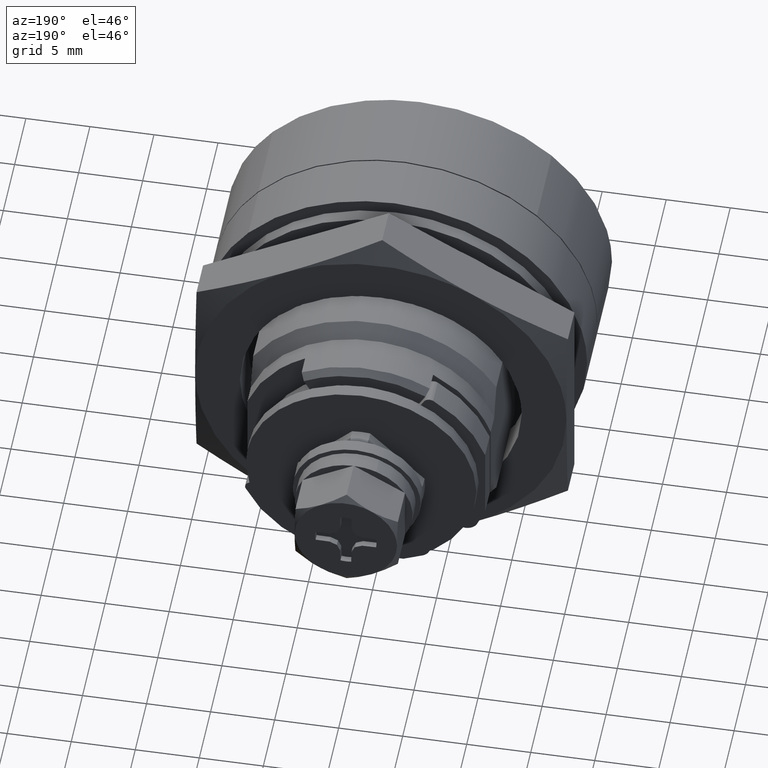
[diagram: clean part render]
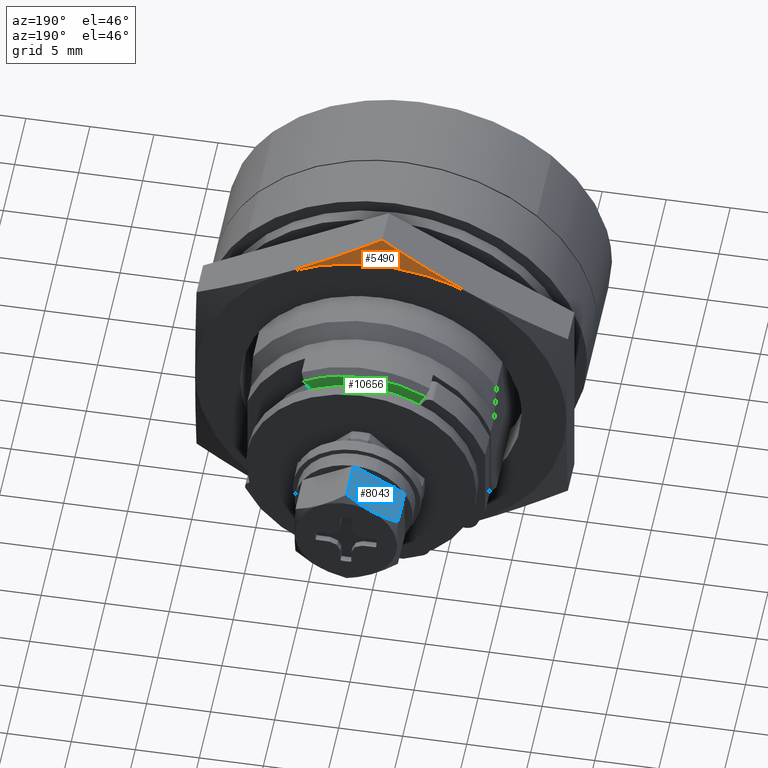
[diagram: same view with three faces highlighted in distinct colors, each labeled with its STEP entity id]
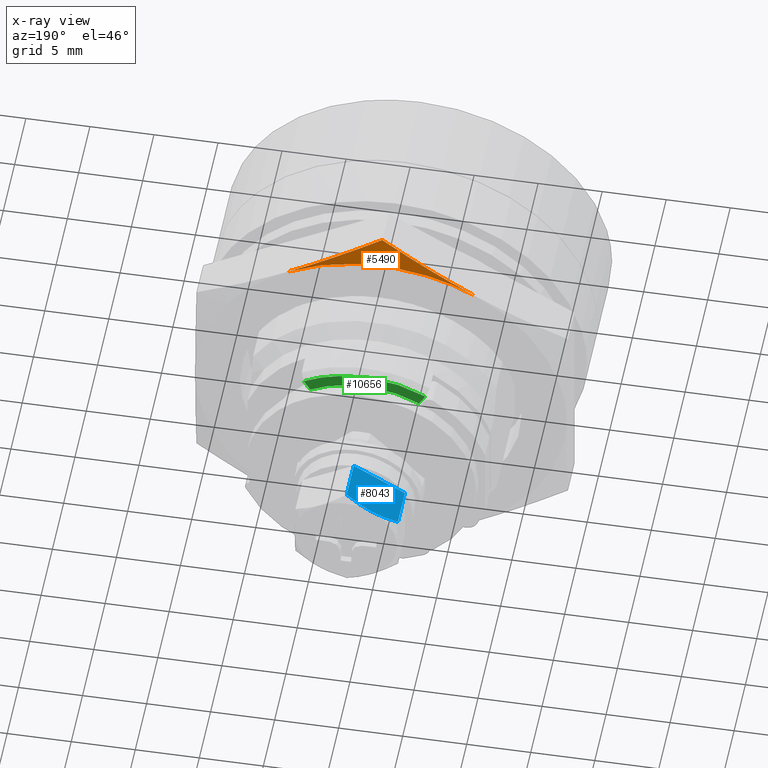
[diagram: x-ray of the same camera — body ghosted, the three highlighted faces saturated]
A machine part, auxiliary view with three faces highlighted in distinct colors.
The next image is the same camera in x-ray (body ghosted, the three faces saturated) — at least one of them is partly hidden behind the body in this view.
Their STEP definitions:

[orange] entity #5490 — the highlighted face is a freeform B-spline surface patch.
#5072=CARTESIAN_POINT('',(60.597371000000102,0.000000999999884,16.743157000000000));
#5073=VERTEX_POINT('',#5072);
#5079=CARTESIAN_POINT('',(61.198423000000012,7.249998893631220,12.557369927437140));
#5080=VERTEX_POINT('',#5079);
#5081=CARTESIAN_POINT('',(61.198423000000012,7.249998893631220,12.557369927437140));
#5082=CARTESIAN_POINT('',(61.198422783189059,6.645832809237941,12.906185281984470));
#5083=CARTESIAN_POINT('',(61.184864209157617,6.041666724496102,13.255000636733030));
#5084=CARTESIAN_POINT('',(61.131455811412970,4.833334013729823,13.952631658739710));
#5085=CARTESIAN_POINT('',(61.091621050792057,4.229167387705772,14.301447325997600));
#5086=CARTESIAN_POINT('',(60.936086251437111,2.416667508707375,15.347894328306070));
#5087=CARTESIAN_POINT('',(60.784300885235609,1.208334254805367,16.045525663892231));
#5088=CARTESIAN_POINT('',(60.597371000000102,0.000000999999884,16.743157000000000));
#5089=B_SPLINE_CURVE_WITH_KNOTS('',3,(#5081,#5082,#5083,#5084,#5085,#5086,#5087,#5088),.UNSPECIFIED.,.F.,.U.,(4,2,2,4),(0.500000111849674,0.625000000000000,0.750000000000000,1.0),.UNSPECIFIED.);
#5090=EDGE_CURVE('',#5080,#5073,#5089,.T.);
#5123=CARTESIAN_POINT('',(61.198423000000012,-7.249998759657210,12.557368427437019));
#5124=VERTEX_POINT('',#5123);
#5133=CARTESIAN_POINT('',(60.597371000000102,0.000000999999884,16.743157000000000));
#5134=CARTESIAN_POINT('',(60.784300968168097,-1.208332418881515,16.045525498721322));
#5135=CARTESIAN_POINT('',(60.936086413042801,-2.416665837346525,15.347893997683030));
#5136=CARTESIAN_POINT('',(61.091621309087039,-4.229165964189286,14.301446746619090));
#5137=CARTESIAN_POINT('',(61.131456098304362,-4.833332672994574,13.952630996346601));
#5138=CARTESIAN_POINT('',(61.184864556301740,-6.041665841139311,13.254999639830761));
#5139=CARTESIAN_POINT('',(61.198423149276202,-6.645832300478582,12.906184033587520));
#5140=CARTESIAN_POINT('',(61.198423000000012,-7.249998759657210,12.557368427437019));
#5141=B_SPLINE_CURVE_WITH_KNOTS('',3,(#5133,#5134,#5135,#5136,#5137,#5138,#5139,#5140),.UNSPECIFIED.,.F.,.U.,(4,2,2,4),(0.0,0.250000000000000,0.375000000000000,0.499999948450755),.UNSPECIFIED.);
#5142=EDGE_CURVE('',#5073,#5124,#5141,.T.);
#5329=CARTESIAN_POINT('',(61.198423000000012,-7.249998759657210,12.557368427437019));
#5330=CARTESIAN_POINT('',(61.198422999999949,-6.291235653011920,13.111171894486111));
#5331=CARTESIAN_POINT('',(61.198423000000012,-4.647776924721195,13.823223252447100));
#5332=CARTESIAN_POINT('',(61.198423000000027,-2.213464929864287,14.380269143137630));
#5333=CARTESIAN_POINT('',(61.198422999999707,0.118053985186283,14.571523492869630));
#5334=CARTESIAN_POINT('',(61.198423000000062,2.650722421189501,14.343061032792161));
#5335=CARTESIAN_POINT('',(61.198423000000332,5.132179018029286,13.634302511985300));
#5336=CARTESIAN_POINT('',(61.198422999999487,6.599365154438225,12.933058949989750));
#5337=CARTESIAN_POINT('',(61.198423000000012,7.249998893631220,12.557369927437140));
#5338=B_SPLINE_CURVE_WITH_KNOTS('',3,(#5329,#5330,#5331,#5332,#5333,#5334,#5335,#5336,#5337),.UNSPECIFIED.,.F.,.U.,(4,1,1,1,1,1,4),(0.000000032304436,3.321584693636115,5.338267214260013,7.473595542323515,10.320647186255609,12.930469232214350,15.184404068213309),.UNSPECIFIED.);
#5339=EDGE_CURVE('',#5124,#5080,#5338,.T.);
#5471=CARTESIAN_POINT('',(61.213449300000001,7.330842547216406,12.445304449733440));
#5472=CARTESIAN_POINT('',(60.581969042500099,8.526967034525883,14.475921436589900));
#5473=CARTESIAN_POINT('',(61.213449300000001,-0.295649828221637,16.937650540397385));
#5474=CARTESIAN_POINT('',(60.581969042500099,-0.343889030868135,19.701253555790583));
#5475=CARTESIAN_POINT('',(61.213449300000001,-7.760714588700297,12.181878523912790));
#5476=CARTESIAN_POINT('',(60.581969042500099,-9.026978418372794,14.169514066489580));
#5484=(BOUNDED_SURFACE()B_SPLINE_SURFACE(1,2,((#5471,#5473,#5475),(#5472,#5474,#5476)),.UNSPECIFIED.,.F.,.F.,.U.)B_SPLINE_SURFACE_WITH_KNOTS((2,2),(3,3),(0.0,2.439853776779163),(0.0,18.953080890439640),.UNSPECIFIED.)GEOMETRIC_REPRESENTATION_ITEM()RATIONAL_B_SPLINE_SURFACE(((1.0,0.852640164354093,1.0),(1.0,0.852640164354093,1.0)))REPRESENTATION_ITEM('')SURFACE());
#5485=ORIENTED_EDGE('',*,*,#5090,.T.);
#5486=ORIENTED_EDGE('',*,*,#5142,.T.);
#5487=ORIENTED_EDGE('',*,*,#5339,.T.);
#5488=EDGE_LOOP('',(#5485,#5486,#5487));
#5489=FACE_OUTER_BOUND('',#5488,.T.);
#5490=ADVANCED_FACE('',(#5489),#5484,.T.);

[blue] entity #8043 — the highlighted face is a freeform B-spline surface patch.
#6792=CARTESIAN_POINT('',(92.421359999999993,3.967583177997025,2.327720714706630));
#6793=VERTEX_POINT('',#6792);
#6996=CARTESIAN_POINT('',(92.421359999999993,0.033106732530280,4.599880861963760));
#6997=VERTEX_POINT('',#6996);
#7661=CARTESIAN_POINT('',(92.421359999999993,3.967583177997025,2.327720714706630));
#7662=CARTESIAN_POINT('',(92.421359999999993,0.033106732530280,4.599880861963760));
#7663=QUASI_UNIFORM_CURVE('',1,(#7661,#7662),.UNSPECIFIED.,.F.,.U.);
#7664=EDGE_CURVE('',#6793,#6997,#7663,.T.);
#7928=CARTESIAN_POINT('',(95.564210000184602,4.0,2.308999999999915));
#7929=VERTEX_POINT('',#7928);
#7965=CARTESIAN_POINT('',(92.421359999999993,4.0,2.308999999999915));
#7966=VERTEX_POINT('',#7965);
#7972=CARTESIAN_POINT('',(92.421359999999993,4.0,2.308999999999915));
#7973=CARTESIAN_POINT('',(95.564210000184602,4.0,2.308999999999915));
#7974=QUASI_UNIFORM_CURVE('',1,(#7972,#7973),.UNSPECIFIED.,.F.,.U.);
#7975=EDGE_CURVE('',#7966,#7929,#7974,.T.);
#7980=CARTESIAN_POINT('',(92.246531198484490,4.199799992247224,2.193615504477139));
#7981=CARTESIAN_POINT('',(92.246531198484490,-0.199800099535584,4.734384557481805));
#7982=CARTESIAN_POINT('',(96.096181072283159,4.199799992247224,2.193615504477139));
#7983=CARTESIAN_POINT('',(96.096181072283159,-0.199800099535584,4.734384557481805));
#7984=B_SPLINE_SURFACE_WITH_KNOTS('',1,1,((#7980,#7982),(#7981,#7983)),.UNSPECIFIED.,.F.,.F.,.U.,(2,2),(2,2),(0.0,5.080550004509504),(0.0,3.849649873798668),.UNSPECIFIED.);
#7985=CARTESIAN_POINT('',(95.563980000000001,0.0,4.619000000000000));
#7986=VERTEX_POINT('',#7985);
#7987=CARTESIAN_POINT('',(95.921359999999993,1.977365605221870,3.477071362984330));
#7988=VERTEX_POINT('',#7987);
#7989=CARTESIAN_POINT('',(95.563979999999972,8.869866E-015,4.618999999999996));
#7990=CARTESIAN_POINT('',(95.591178000583909,0.081572804682868,4.571891705295645));
#7991=CARTESIAN_POINT('',(95.617252941894435,0.163515301729083,4.524569913251453));
#7992=CARTESIAN_POINT('',(95.666875313126923,0.328232310373892,4.429445840759072));
#7993=CARTESIAN_POINT('',(95.690446019959225,0.411106207632420,4.381586165092269));
#7994=CARTESIAN_POINT('',(95.756566784901949,0.659787127841645,4.237972933671437));
#7995=CARTESIAN_POINT('',(95.794621342361253,0.825954722032223,4.142011148026375));
#7996=CARTESIAN_POINT('',(95.886454411074382,1.319008323411181,3.857272693230017));
#7997=CARTESIAN_POINT('',(95.919877753195607,1.647179000007474,3.667754127495651));
#7998=CARTESIAN_POINT('',(95.921359999999993,1.977365605221870,3.477071362984330));
#7999=B_SPLINE_CURVE_WITH_KNOTS('',3,(#7989,#7990,#7991,#7992,#7993,#7994,#7995,#7996,#7997,#7998),.UNSPECIFIED.,.F.,.U.,(4,2,2,2,4),(0.0,0.062500000000000,0.125000000000000,0.250000000000000,0.494914165282628),.UNSPECIFIED.);
#8000=EDGE_CURVE('',#7986,#7988,#7999,.T.);
#8001=ORIENTED_EDGE('',*,*,#8000,.T.);
#8002=CARTESIAN_POINT('',(95.921359999999993,2.023324305305460,3.450530213686050));
#8003=VERTEX_POINT('',#8002);
#8004=CARTESIAN_POINT('',(95.921359999999993,2.023324305305460,3.450530213686050));
#8005=CARTESIAN_POINT('',(95.921359999999993,1.977365605221870,3.477071362984330));
#8006=QUASI_UNIFORM_CURVE('',1,(#8004,#8005),.UNSPECIFIED.,.F.,.U.);
#8007=EDGE_CURVE('',#8003,#7988,#8006,.T.);
#8008=ORIENTED_EDGE('',*,*,#8007,.F.);
#8009=CARTESIAN_POINT('',(95.921359999999993,2.023324305305460,3.450530213686050));
#8010=CARTESIAN_POINT('',(95.920647807053896,2.183477505572434,3.358041740531874));
#8011=CARTESIAN_POINT('',(95.912500948566546,2.344099947275242,3.265282280448500));
#8012=CARTESIAN_POINT('',(95.888857734038481,2.589985065411092,3.123283624725038));
#8013=CARTESIAN_POINT('',(95.878648739335119,2.675101199153325,3.074129057488898));
#8014=CARTESIAN_POINT('',(95.854444327904247,2.844603422096355,2.976241523739294));
#8015=CARTESIAN_POINT('',(95.840477460526955,2.928874196498906,2.927575151521819));
#8016=CARTESIAN_POINT('',(95.762082563835222,3.348022867273360,2.685516794149564));
#8017=CARTESIAN_POINT('',(95.672103821583889,3.676318896911251,2.495925837033673));
#8018=CARTESIAN_POINT('',(95.564210000184730,4.000000000000028,2.308999999999898));
#8019=B_SPLINE_CURVE_WITH_KNOTS('',3,(#8009,#8010,#8011,#8012,#8013,#8014,#8015,#8016,#8017,#8018),.UNSPECIFIED.,.F.,.U.,(4,2,2,2,4),(0.506274160676632,0.625000000000000,0.687500000000000,0.750000000000000,1.0),.UNSPECIFIED.);
#8020=EDGE_CURVE('',#8003,#7929,#8019,.T.);
#8021=ORIENTED_EDGE('',*,*,#8020,.T.);
#8022=ORIENTED_EDGE('',*,*,#7975,.F.);
#8023=CARTESIAN_POINT('',(92.421359999999993,4.0,2.308999999999915));
#8024=CARTESIAN_POINT('',(92.421359999999993,3.967583177997025,2.327720714706630));
#8025=QUASI_UNIFORM_CURVE('',1,(#8023,#8024),.UNSPECIFIED.,.F.,.U.);
#8026=EDGE_CURVE('',#7966,#6793,#8025,.T.);
#8027=ORIENTED_EDGE('',*,*,#8026,.T.);
#8028=ORIENTED_EDGE('',*,*,#7664,.T.);
#8029=CARTESIAN_POINT('',(92.421359999999993,0.0,4.619000000000000));
#8030=VERTEX_POINT('',#8029);
#8031=CARTESIAN_POINT('',(92.421359999999993,0.033106732530280,4.599880861963760));
#8032=CARTESIAN_POINT('',(92.421359999999993,0.0,4.619000000000000));
#8033=QUASI_UNIFORM_CURVE('',1,(#8031,#8032),.UNSPECIFIED.,.F.,.U.);
#8034=EDGE_CURVE('',#6997,#8030,#8033,.T.);
#8035=ORIENTED_EDGE('',*,*,#8034,.T.);
#8036=CARTESIAN_POINT('',(92.421359999999993,0.0,4.619000000000000));
#8037=CARTESIAN_POINT('',(95.563980000000001,0.0,4.619000000000000));
#8038=QUASI_UNIFORM_CURVE('',1,(#8036,#8037),.UNSPECIFIED.,.F.,.U.);
#8039=EDGE_CURVE('',#8030,#7986,#8038,.T.);
#8040=ORIENTED_EDGE('',*,*,#8039,.T.);
#8041=EDGE_LOOP('',(#8001,#8008,#8021,#8022,#8027,#8028,#8035,#8040));
#8042=FACE_OUTER_BOUND('',#8041,.T.);
#8043=ADVANCED_FACE('',(#8042),#7984,.T.);

[green] entity #10656 — the highlighted face is a freeform B-spline surface patch.
#10579=CARTESIAN_POINT('',(13.500000000000000,4.749999712459190,8.227241501964370));
#10580=VERTEX_POINT('',#10579);
#10600=CARTESIAN_POINT('',(13.500000000000000,-4.749999712459190,8.227241501964370));
#10601=VERTEX_POINT('',#10600);
#10607=CARTESIAN_POINT('',(13.500000000000000,4.749999712459190,8.227241501964370));
#10608=CARTESIAN_POINT('',(13.500000000000020,4.278859603590554,8.499301563133113));
#10609=CARTESIAN_POINT('',(13.499999999999970,3.219009399061166,8.995235362815221));
#10610=CARTESIAN_POINT('',(13.500000000000011,1.631451222690420,9.406784932495414));
#10611=CARTESIAN_POINT('',(13.500000000000000,0.207445134248038,9.523442174947810));
#10612=CARTESIAN_POINT('',(13.499999999999970,-1.140267584007029,9.462773706457563));
#10613=CARTESIAN_POINT('',(13.500000000000041,-2.801925865674454,9.153513680000804));
#10614=CARTESIAN_POINT('',(13.499999999999989,-4.054557876971956,8.628983088385827));
#10615=CARTESIAN_POINT('',(13.500000000000000,-4.749999712459190,8.227241501964370));
#10616=B_SPLINE_CURVE_WITH_KNOTS('',3,(#10607,#10608,#10609,#10610,#10611,#10612,#10613,#10614,#10615),.UNSPECIFIED.,.F.,.U.,(4,1,1,1,1,1,4),(0.000000039644926,1.632149737307779,3.497496127390782,4.896507153602273,5.906854646231986,7.539025593919737,9.948403816216571),.UNSPECIFIED.);
#10617=EDGE_CURVE('',#10580,#10601,#10616,.T.);
#10622=CARTESIAN_POINT('',(13.500000000000000,-5.224524453021954,7.254383666034995));
#10623=CARTESIAN_POINT('',(13.500000000000000,5.224524198212114,7.254383666034995));
#10624=CARTESIAN_POINT('',(13.500000000000000,-5.224524453021954,9.606835202297861));
#10625=CARTESIAN_POINT('',(13.500000000000000,5.224524198212114,9.606835202297861));
#10626=B_SPLINE_SURFACE_WITH_KNOTS('',1,1,((#10622,#10624),(#10623,#10625)),.UNSPECIFIED.,.F.,.F.,.U.,(2,2),(2,2),(0.0,10.449048651234071),(0.0,2.352451536262866),.UNSPECIFIED.);
#10627=CARTESIAN_POINT('',(13.500000000000000,4.249999999999895,7.361215999999811));
#10628=VERTEX_POINT('',#10627);
#10629=CARTESIAN_POINT('',(13.500000000000000,4.749999712459190,8.227241501964370));
#10630=CARTESIAN_POINT('',(13.500000000000000,4.249999999999895,7.361215999999811));
#10631=QUASI_UNIFORM_CURVE('',1,(#10629,#10630),.UNSPECIFIED.,.F.,.U.);
#10632=EDGE_CURVE('',#10580,#10628,#10631,.T.);
#10633=ORIENTED_EDGE('',*,*,#10632,.F.);
#10634=ORIENTED_EDGE('',*,*,#10617,.T.);
#10635=CARTESIAN_POINT('',(13.500000000000000,-4.249999999999890,7.361215999999811));
#10636=VERTEX_POINT('',#10635);
#10637=CARTESIAN_POINT('',(13.500000000000000,-4.249999999999890,7.361215999999811));
#10638=CARTESIAN_POINT('',(13.500000000000000,-4.749999712459190,8.227241501964370));
#10639=QUASI_UNIFORM_CURVE('',1,(#10637,#10638),.UNSPECIFIED.,.F.,.U.);
#10640=EDGE_CURVE('',#10636,#10601,#10639,.T.);
#10641=ORIENTED_EDGE('',*,*,#10640,.F.);
#10642=CARTESIAN_POINT('',(13.500000000000000,4.249999999999895,7.361215999999811));
#10643=CARTESIAN_POINT('',(13.500000000000011,3.667903397639301,7.697480961583286));
#10644=CARTESIAN_POINT('',(13.500000000000030,2.766694096030061,8.083516937505225));
#10645=CARTESIAN_POINT('',(13.500000000000000,1.411581179884242,8.405295757597786));
#10646=CARTESIAN_POINT('',(13.500000000000060,0.302229864637115,8.523734864870773));
#10647=CARTESIAN_POINT('',(13.499999999999989,-1.114241296011898,8.471654635777854));
#10648=CARTESIAN_POINT('',(13.500000000000000,-2.663668560208614,8.136970639335715));
#10649=CARTESIAN_POINT('',(13.500000000000000,-3.748170845949618,7.651036595437280));
#10650=CARTESIAN_POINT('',(13.500000000000000,-4.249999999999890,7.361215999999811));
#10651=B_SPLINE_CURVE_WITH_KNOTS('',3,(#10642,#10643,#10644,#10645,#10646,#10647,#10648,#10649,#10650),.UNSPECIFIED.,.F.,.U.,(4,1,1,1,1,1,4),(0.000000040251068,2.016676778201520,2.920716484092949,4.172459392271287,5.354614646079215,7.162689508413309,8.901204002346420),.UNSPECIFIED.);
#10652=EDGE_CURVE('',#10628,#10636,#10651,.T.);
#10653=ORIENTED_EDGE('',*,*,#10652,.F.);
#10654=EDGE_LOOP('',(#10633,#10634,#10641,#10653));
#10655=FACE_OUTER_BOUND('',#10654,.T.);
#10656=ADVANCED_FACE('',(#10655),#10626,.T.);